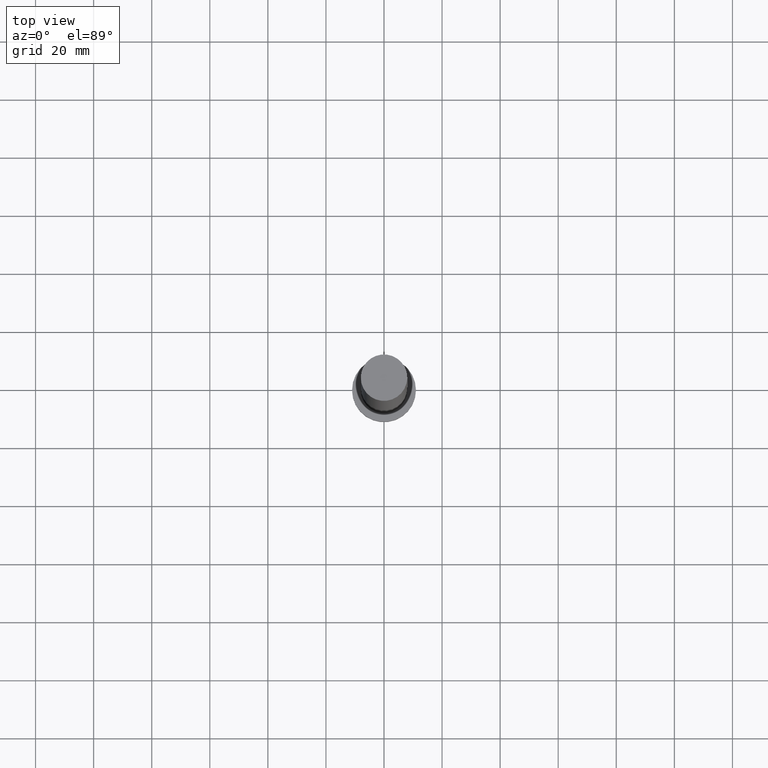
[diagram: clean part render]
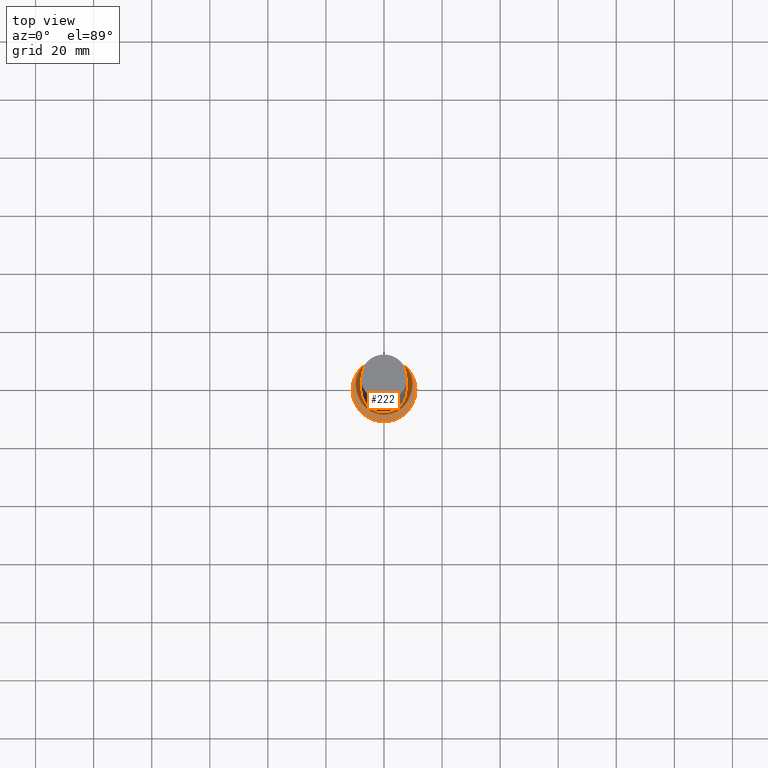
[diagram: same view with one face highlighted and labeled with its STEP entity id]
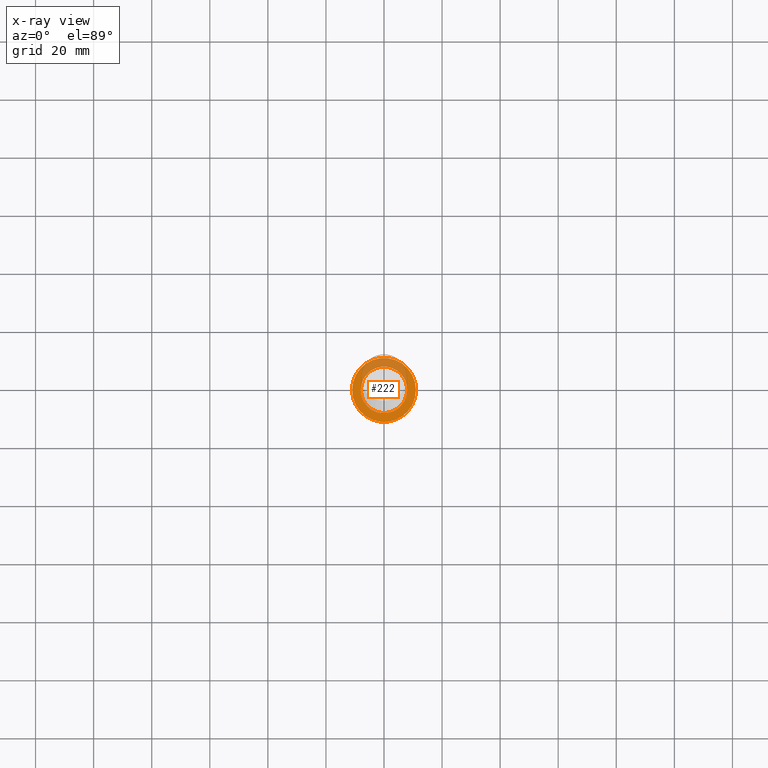
[diagram: x-ray of the same camera — body ghosted, the highlighted face saturated]
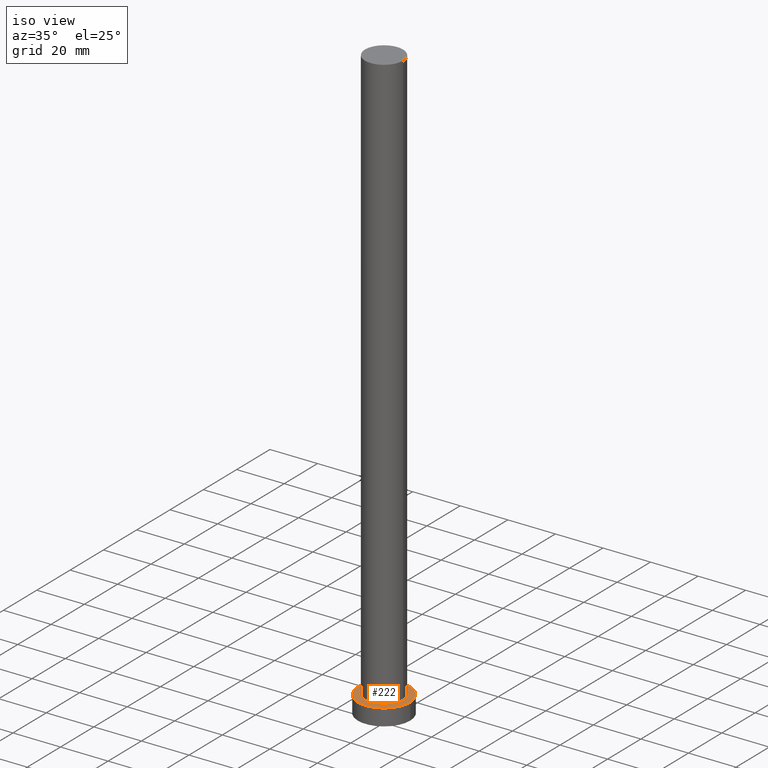
[diagram: same view with one face highlighted and labeled with its STEP entity id]
A machine part, top view. The second image highlights one B-rep face of the part: STEP entity #222.
The next image is the same camera in x-ray: the body ghosted, the highlighted face saturated — about 31% of this face is hidden behind the body in this view.
A second angle (iso view) of the same face is appended — the face is thin or edge-on in the first view.
In plain terms, the highlighted planar face has unit normal (0, 0, 1).
Its self-contained STEP definition (entity closure, byte-faithful):
#10 = CARTESIAN_POINT ( 'NONE',  ( 0.000000000000000000, 0.000000000000000000, 7.000000000000000000 ) ) ;
#22 = ORIENTED_EDGE ( 'NONE', *, *, #47, .T. ) ;
#24 = CIRCLE ( 'NONE', #168, 11.00000000000000000 ) ;
#33 = PLANE ( 'NONE',  #79 ) ;
#35 = FACE_OUTER_BOUND ( 'NONE', #61, .T. ) ;
#41 = VERTEX_POINT ( 'NONE', #178 ) ;
#43 = EDGE_LOOP ( 'NONE', ( #160, #140 ) ) ;
#47 = EDGE_CURVE ( 'NONE', #131, #60, #24, .T. ) ;
#50 = CARTESIAN_POINT ( 'NONE',  ( 11.00000000000000000, 1.347111479062088405E-15, 7.000000000000000000 ) ) ;
#51 = EDGE_CURVE ( 'NONE', #41, #100, #59, .T. ) ;
#59 = CIRCLE ( 'NONE', #193, 8.000000000000000000 ) ;
#60 = VERTEX_POINT ( 'NONE', #66 ) ;
#61 = EDGE_LOOP ( 'NONE', ( #78, #22 ) ) ;
#66 = CARTESIAN_POINT ( 'NONE',  ( -11.00000000000000000, 0.000000000000000000, 7.000000000000000000 ) ) ;
#68 = DIRECTION ( 'NONE',  ( 0.000000000000000000, 0.000000000000000000, 1.000000000000000000 ) ) ;
#78 = ORIENTED_EDGE ( 'NONE', *, *, #165, .T. ) ;
#79 = AXIS2_PLACEMENT_3D ( 'NONE', #248, #89, #231 ) ;
#86 = AXIS2_PLACEMENT_3D ( 'NONE', #184, #68, #171 ) ;
#87 = DIRECTION ( 'NONE',  ( 1.000000000000000000, 0.000000000000000000, 0.000000000000000000 ) ) ;
#89 = DIRECTION ( 'NONE',  ( 0.000000000000000000, 0.000000000000000000, 1.000000000000000000 ) ) ;
#100 = VERTEX_POINT ( 'NONE', #181 ) ;
#115 = DIRECTION ( 'NONE',  ( 1.000000000000000000, 0.000000000000000000, 0.000000000000000000 ) ) ;
#120 = FACE_BOUND ( 'NONE', #43, .T. ) ;
#130 = AXIS2_PLACEMENT_3D ( 'NONE', #155, #135, #115 ) ;
#131 = VERTEX_POINT ( 'NONE', #50 ) ;
#135 = DIRECTION ( 'NONE',  ( 0.000000000000000000, 0.000000000000000000, 1.000000000000000000 ) ) ;
#140 = ORIENTED_EDGE ( 'NONE', *, *, #51, .F. ) ;
#147 = DIRECTION ( 'NONE',  ( 0.000000000000000000, 0.000000000000000000, 1.000000000000000000 ) ) ;
#155 = CARTESIAN_POINT ( 'NONE',  ( 0.000000000000000000, 0.000000000000000000, 7.000000000000000000 ) ) ;
#159 = CIRCLE ( 'NONE', #130, 8.000000000000000000 ) ;
#160 = ORIENTED_EDGE ( 'NONE', *, *, #208, .F. ) ;
#164 = DIRECTION ( 'NONE',  ( 0.000000000000000000, 0.000000000000000000, 1.000000000000000000 ) ) ;
#165 = EDGE_CURVE ( 'NONE', #60, #131, #226, .T. ) ;
#168 = AXIS2_PLACEMENT_3D ( 'NONE', #200, #147, #87 ) ;
#171 = DIRECTION ( 'NONE',  ( 1.000000000000000000, 0.000000000000000000, 0.000000000000000000 ) ) ;
#178 = CARTESIAN_POINT ( 'NONE',  ( 8.000000000000000000, 9.797174393178825657E-16, 7.000000000000000000 ) ) ;
#181 = CARTESIAN_POINT ( 'NONE',  ( -8.000000000000000000, 0.000000000000000000, 7.000000000000000000 ) ) ;
#184 = CARTESIAN_POINT ( 'NONE',  ( 0.000000000000000000, 0.000000000000000000, 7.000000000000000000 ) ) ;
#193 = AXIS2_PLACEMENT_3D ( 'NONE', #10, #164, #217 ) ;
#200 = CARTESIAN_POINT ( 'NONE',  ( 0.000000000000000000, 0.000000000000000000, 7.000000000000000000 ) ) ;
#208 = EDGE_CURVE ( 'NONE', #100, #41, #159, .T. ) ;
#217 = DIRECTION ( 'NONE',  ( 1.000000000000000000, 0.000000000000000000, 0.000000000000000000 ) ) ;
#222 = ADVANCED_FACE ( 'NONE', ( #120, #35 ), #33, .T. ) ;
#226 = CIRCLE ( 'NONE', #86, 11.00000000000000000 ) ;
#231 = DIRECTION ( 'NONE',  ( 1.000000000000000000, 0.000000000000000000, -0.000000000000000000 ) ) ;
#248 = CARTESIAN_POINT ( 'NONE',  ( 0.000000000000000000, 0.000000000000000000, 7.000000000000000000 ) ) ;